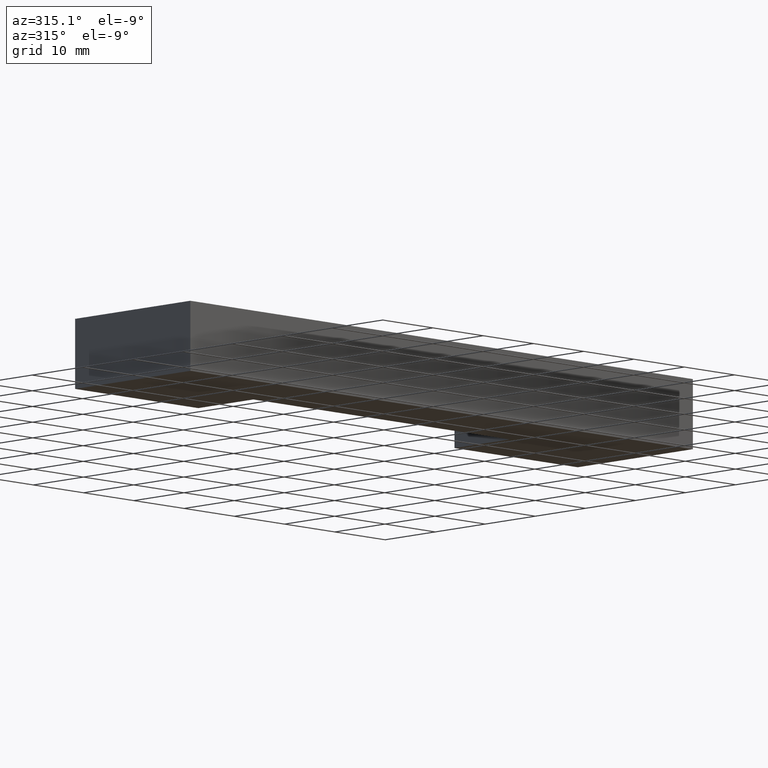
[diagram: clean part render]
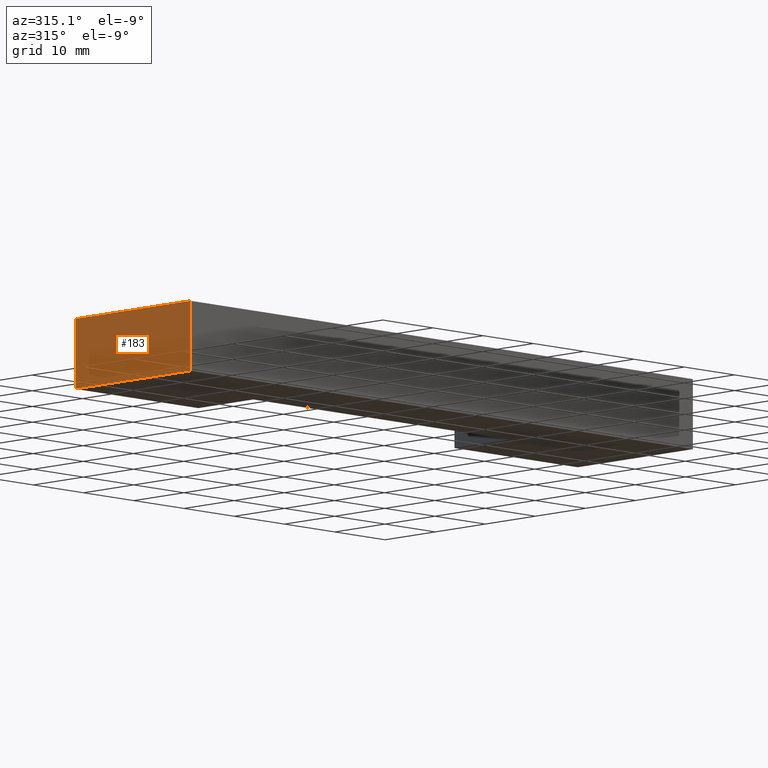
[diagram: same view with one face highlighted and labeled with its STEP entity id]
A machine part, auxiliary view. The second image highlights one B-rep face of the part: STEP entity #183.
In plain terms, the highlighted planar face has unit normal (-1, 0, 0).
Its self-contained STEP definition (entity closure, byte-faithful):
#17=FACE_OUTER_BOUND('',#27,.T.);
#27=EDGE_LOOP('',(#132,#133,#134,#135));
#38=LINE('',#279,#62);
#44=LINE('',#292,#68);
#45=LINE('',#293,#69);
#46=LINE('',#294,#70);
#62=VECTOR('',#231,10.);
#68=VECTOR('',#239,10.);
#69=VECTOR('',#240,10.);
#70=VECTOR('',#241,10.);
#86=VERTEX_POINT('',#276);
#87=VERTEX_POINT('',#278);
#92=VERTEX_POINT('',#290);
#93=VERTEX_POINT('',#291);
#102=EDGE_CURVE('',#87,#86,#38,.T.);
#108=EDGE_CURVE('',#92,#93,#44,.T.);
#109=EDGE_CURVE('',#93,#87,#45,.T.);
#110=EDGE_CURVE('',#92,#86,#46,.T.);
#132=ORIENTED_EDGE('',*,*,#108,.T.);
#133=ORIENTED_EDGE('',*,*,#109,.T.);
#134=ORIENTED_EDGE('',*,*,#102,.T.);
#135=ORIENTED_EDGE('',*,*,#110,.F.);
#173=PLANE('',#216);
#183=ADVANCED_FACE('',(#17),#173,.T.);
#216=AXIS2_PLACEMENT_3D('',#289,#237,#238);
#231=DIRECTION('',(0.,-1.,0.));
#237=DIRECTION('center_axis',(-1.,0.,0.));
#238=DIRECTION('ref_axis',(0.,0.,1.));
#239=DIRECTION('',(0.,1.,0.));
#240=DIRECTION('',(0.,0.,-1.));
#241=DIRECTION('',(0.,0.,-1.));
#276=CARTESIAN_POINT('',(-50.,-11.5,-5.));
#278=CARTESIAN_POINT('',(-50.,11.5,-5.));
#279=CARTESIAN_POINT('',(-50.,-11.5,-5.));
#289=CARTESIAN_POINT('Origin',(-50.,-11.5,0.));
#290=CARTESIAN_POINT('',(-50.,-11.5,5.));
#291=CARTESIAN_POINT('',(-50.,11.5,5.));
#292=CARTESIAN_POINT('',(-50.,-11.5,5.));
#293=CARTESIAN_POINT('',(-50.,11.5,0.));
#294=CARTESIAN_POINT('',(-50.,-11.5,0.));